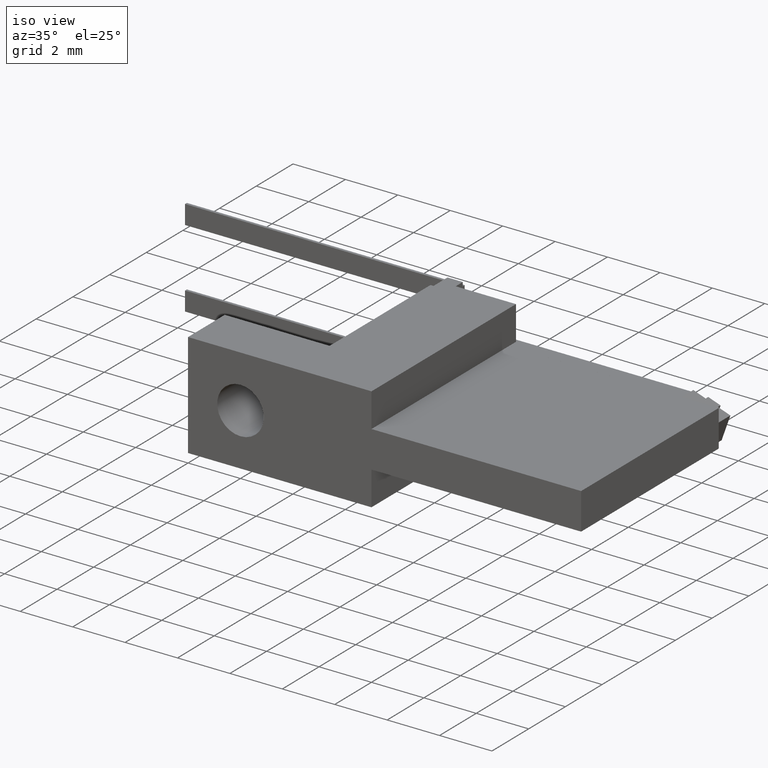
[diagram: clean part render]
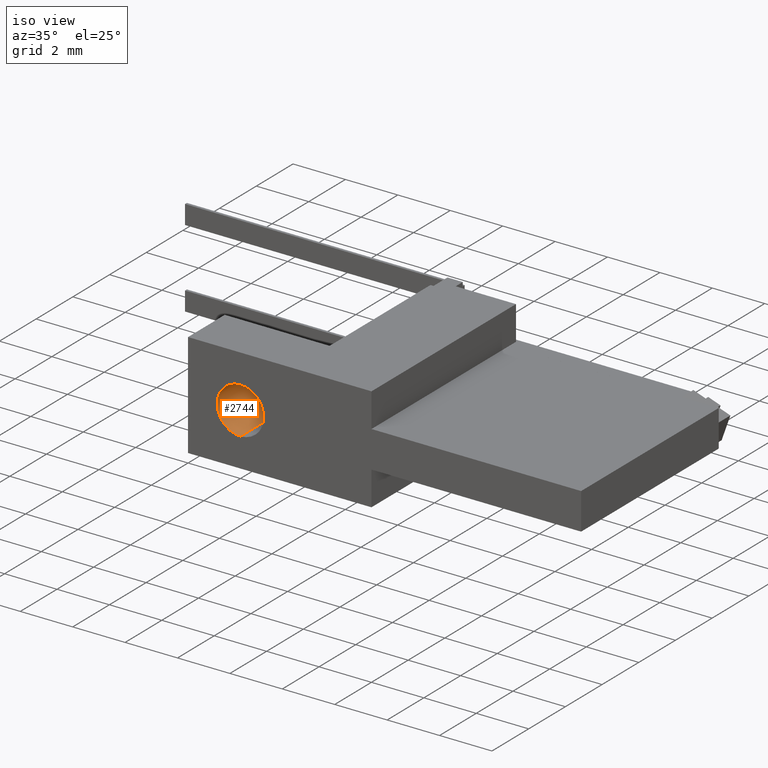
[diagram: same view with one face highlighted and labeled with its STEP entity id]
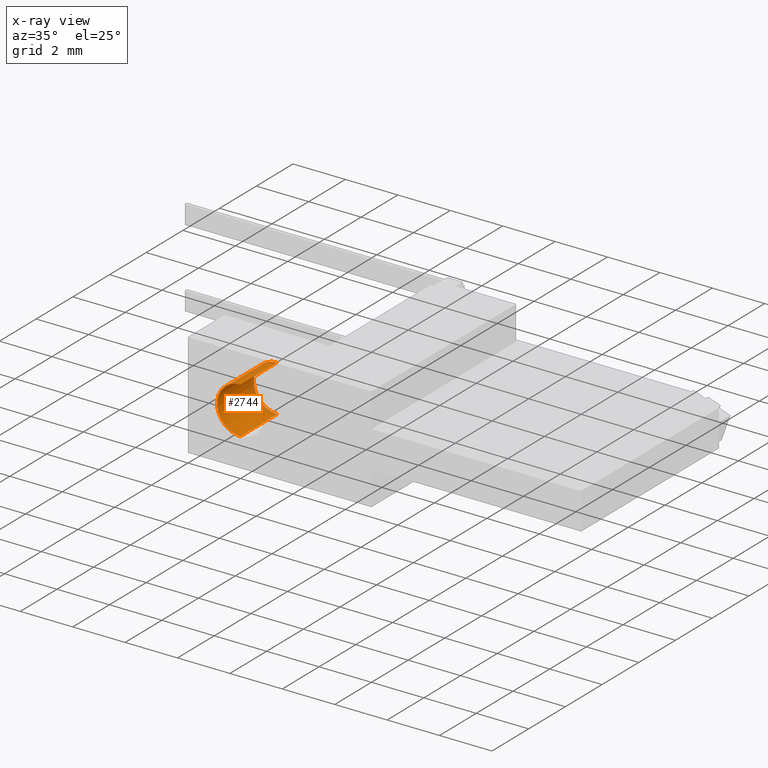
[diagram: x-ray of the same camera — body ghosted, the highlighted face saturated]
A machine part, iso view. The second image highlights one B-rep face of the part: STEP entity #2744.
The next image is the same camera in x-ray: the body ghosted, the highlighted face saturated — about 6% of this face is hidden behind the body in this view.
In plain terms, the highlighted cylindrical surface (edge-blend (fillet) strip) has radius 0.889 mm, axis along (0, 1, 0).
Its self-contained STEP definition (entity closure, byte-faithful):
#551 = CARTESIAN_POINT ( 'NONE',  ( 1.999999999999997800, 2.000000000000000000, 1.110996232397747600 ) ) ;
#552 = DIRECTION ( 'NONE',  ( -0.0000000000000000000, 1.000000000000000000, -0.0000000000000000000 ) ) ;
#553 = DIRECTION ( 'NONE',  ( -0.0000000000000000000, 1.000000000000000000, -0.0000000000000000000 ) ) ;
#554 = VECTOR ( 'NONE', #553, 1000.000000000000000 ) ;
#555 = CARTESIAN_POINT ( 'NONE',  ( 1.999999999999997800, 1.999999999999998200, 2.888996232397728300 ) ) ;
#556 = LINE ( 'NONE', #555, #554 ) ;
#557 = CARTESIAN_POINT ( 'NONE',  ( 1.999999999999997800, 2.000000000000000000, 2.888996232397721600 ) ) ;
#558 = DIRECTION ( 'NONE',  ( 0.0000000000000000000, 0.0000000000000000000, 1.000000000000000000 ) ) ;
#559 = DIRECTION ( 'NONE',  ( -0.0000000000000000000, 1.000000000000000000, -0.0000000000000000000 ) ) ;
#560 = CARTESIAN_POINT ( 'NONE',  ( 1.999999999999997800, 2.000000000000000000, 1.999996232397734700 ) ) ;
#561 = AXIS2_PLACEMENT_3D ( 'NONE', #560, #559, #558 ) ;
#562 = CIRCLE ( 'NONE', #561, 0.8889999999999870200 ) ;
#565 = VECTOR ( 'NONE', #552, 1000.000000000000000 ) ;
#566 = CARTESIAN_POINT ( 'NONE',  ( 1.999999999999997800, 1.999999999999998200, 1.110996232397741400 ) ) ;
#567 = LINE ( 'NONE', #566, #565 ) ;
#859 = DIRECTION ( 'NONE',  ( -0.0000000000000000000, 1.000000000000000000, -0.0000000000000000000 ) ) ;
#876 = CARTESIAN_POINT ( 'NONE',  ( 1.999999999999997800, 1.999999999999998200, 1.999996232397734700 ) ) ;
#877 = AXIS2_PLACEMENT_3D ( 'NONE', #876, #859, #907 ) ;
#878 = CYLINDRICAL_SURFACE ( 'NONE', #877, 0.8889999999999935700 ) ;
#879 = FACE_OUTER_BOUND ( 'NONE', #2745, .T. ) ;
#902 = DIRECTION ( 'NONE',  ( -0.0000000000000000000, 1.000000000000000000, -0.0000000000000000000 ) ) ;
#903 = CARTESIAN_POINT ( 'NONE',  ( 1.999999999999997800, -1.734723475976807100E-015, 1.999996232397734700 ) ) ;
#904 = AXIS2_PLACEMENT_3D ( 'NONE', #903, #902, #916 ) ;
#907 = DIRECTION ( 'NONE',  ( 0.0000000000000000000, 0.0000000000000000000, 1.000000000000000000 ) ) ;
#908 = CIRCLE ( 'NONE', #904, 0.8889999999999995700 ) ;
#915 = CARTESIAN_POINT ( 'NONE',  ( 1.999999999999997800, -1.734723475976807100E-015, 1.110996232397735200 ) ) ;
#916 = DIRECTION ( 'NONE',  ( 0.0000000000000000000, 0.0000000000000000000, 1.000000000000000000 ) ) ;
#946 = CARTESIAN_POINT ( 'NONE',  ( 1.999999999999997800, -1.734723475976807100E-015, 2.888996232397734500 ) ) ;
#2639 = ORIENTED_EDGE ( 'NONE', *, *, #2640, .T. ) ;
#2640 = EDGE_CURVE ( 'NONE', #2748, #2641, #567, .T. ) ;
#2641 = VERTEX_POINT ( 'NONE', #551 ) ;
#2643 = ORIENTED_EDGE ( 'NONE', *, *, #2644, .T. ) ;
#2644 = EDGE_CURVE ( 'NONE', #2641, #2645, #562, .T. ) ;
#2645 = VERTEX_POINT ( 'NONE', #557 ) ;
#2646 = ORIENTED_EDGE ( 'NONE', *, *, #2647, .F. ) ;
#2647 = EDGE_CURVE ( 'NONE', #2664, #2645, #556, .T. ) ;
#2664 = VERTEX_POINT ( 'NONE', #946 ) ;
#2744 = ADVANCED_FACE ( 'NONE', ( #879 ), #878, .F. ) ;
#2745 = EDGE_LOOP ( 'NONE', ( #2746, #2639, #2643, #2646 ) ) ;
#2746 = ORIENTED_EDGE ( 'NONE', *, *, #2747, .F. ) ;
#2747 = EDGE_CURVE ( 'NONE', #2748, #2664, #908, .T. ) ;
#2748 = VERTEX_POINT ( 'NONE', #915 ) ;